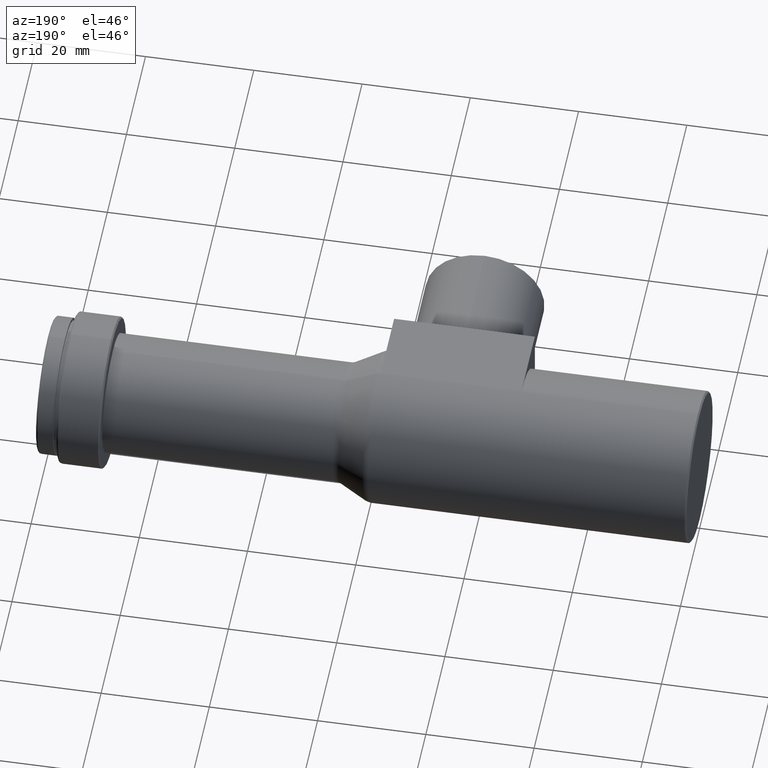
[diagram: clean part render]
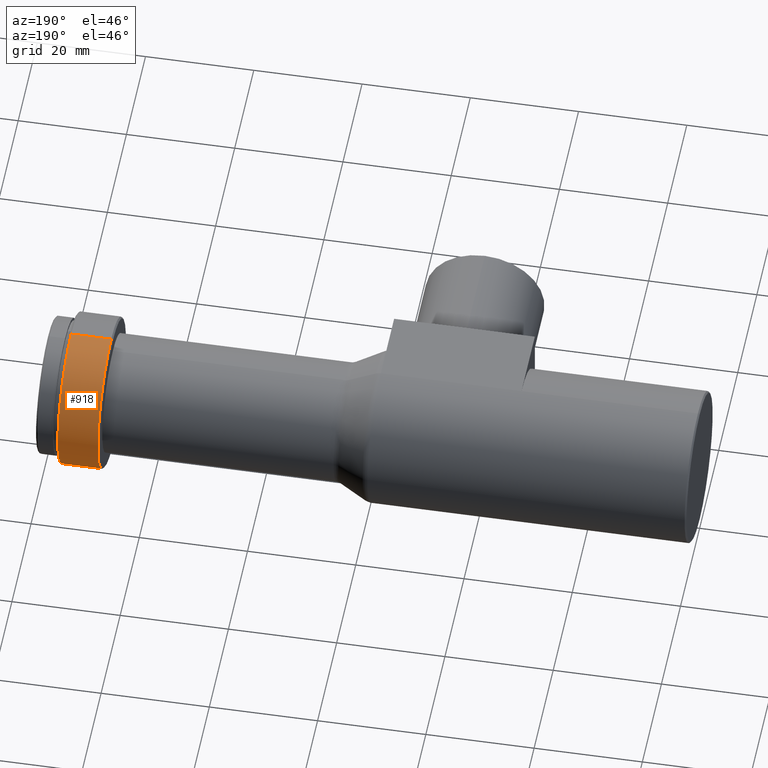
[diagram: same view with one face highlighted and labeled with its STEP entity id]
A machine part, auxiliary view. The second image highlights one B-rep face of the part: STEP entity #918.
In plain terms, the highlighted cylindrical surface (partial cylindrical patch) has radius 14 mm, axis along (-1, -0, -0).
Its self-contained STEP definition (entity closure, byte-faithful):
#14 = EDGE_CURVE ( 'NONE', #892, #454, #1109, .T. ) ;
#67 = VERTEX_POINT ( 'NONE', #72 ) ;
#72 = CARTESIAN_POINT ( 'NONE',  ( 108.6999999999999900, 1.714505518806294600E-015, 14.00000000000000000 ) ) ;
#97 = EDGE_CURVE ( 'NONE', #892, #67, #857, .T. ) ;
#99 = EDGE_CURVE ( 'NONE', #454, #541, #173, .T. ) ;
#110 = DIRECTION ( 'NONE',  ( 0.0000000000000000000, 0.0000000000000000000, 1.000000000000000000 ) ) ;
#170 = CYLINDRICAL_SURFACE ( 'NONE', #667, 14.00000000000000000 ) ;
#173 = LINE ( 'NONE', #1101, #602 ) ;
#219 = EDGE_CURVE ( 'NONE', #67, #541, #570, .T. ) ;
#337 = DIRECTION ( 'NONE',  ( 0.0000000000000000000, 0.0000000000000000000, 1.000000000000000000 ) ) ;
#345 = FACE_OUTER_BOUND ( 'NONE', #611, .T. ) ;
#382 = ORIENTED_EDGE ( 'NONE', *, *, #97, .F. ) ;
#409 = CARTESIAN_POINT ( 'NONE',  ( 108.6999999999999900, 0.0000000000000000000, -14.00000000000000000 ) ) ;
#454 = VERTEX_POINT ( 'NONE', #578 ) ;
#476 = ORIENTED_EDGE ( 'NONE', *, *, #219, .F. ) ;
#481 = CARTESIAN_POINT ( 'NONE',  ( 0.0000000000000000000, 0.0000000000000000000, 0.0000000000000000000 ) ) ;
#491 = ORIENTED_EDGE ( 'NONE', *, *, #14, .T. ) ;
#516 = CARTESIAN_POINT ( 'NONE',  ( 0.0000000000000000000, 0.0000000000000000000, 14.00000000000000000 ) ) ;
#541 = VERTEX_POINT ( 'NONE', #409 ) ;
#551 = CARTESIAN_POINT ( 'NONE',  ( 116.1000000000000100, 0.0000000000000000000, 14.00000000000000000 ) ) ;
#570 = CIRCLE ( 'NONE', #809, 14.00000000000000000 ) ;
#578 = CARTESIAN_POINT ( 'NONE',  ( 116.1000000000000100, 1.714505518806294600E-015, -14.00000000000000000 ) ) ;
#602 = VECTOR ( 'NONE', #1043, 1000.000000000000000 ) ;
#611 = EDGE_LOOP ( 'NONE', ( #491, #920, #476, #382 ) ) ;
#618 = AXIS2_PLACEMENT_3D ( 'NONE', #681, #1016, #337 ) ;
#663 = DIRECTION ( 'NONE',  ( -1.000000000000000000, -0.0000000000000000000, -0.0000000000000000000 ) ) ;
#667 = AXIS2_PLACEMENT_3D ( 'NONE', #481, #663, #745 ) ;
#668 = VECTOR ( 'NONE', #787, 1000.000000000000000 ) ;
#681 = CARTESIAN_POINT ( 'NONE',  ( 116.1000000000000100, 0.0000000000000000000, 0.0000000000000000000 ) ) ;
#714 = CARTESIAN_POINT ( 'NONE',  ( 108.6999999999999900, 0.0000000000000000000, 0.0000000000000000000 ) ) ;
#745 = DIRECTION ( 'NONE',  ( 0.0000000000000000000, 0.0000000000000000000, 1.000000000000000000 ) ) ;
#787 = DIRECTION ( 'NONE',  ( -1.000000000000000000, -0.0000000000000000000, -0.0000000000000000000 ) ) ;
#805 = DIRECTION ( 'NONE',  ( -1.000000000000000000, -0.0000000000000000000, -0.0000000000000000000 ) ) ;
#809 = AXIS2_PLACEMENT_3D ( 'NONE', #714, #805, #110 ) ;
#857 = LINE ( 'NONE', #516, #668 ) ;
#892 = VERTEX_POINT ( 'NONE', #551 ) ;
#918 = ADVANCED_FACE ( 'NONE', ( #345 ), #170, .T. ) ;
#920 = ORIENTED_EDGE ( 'NONE', *, *, #99, .T. ) ;
#1016 = DIRECTION ( 'NONE',  ( -1.000000000000000000, -0.0000000000000000000, -0.0000000000000000000 ) ) ;
#1043 = DIRECTION ( 'NONE',  ( -1.000000000000000000, -0.0000000000000000000, -0.0000000000000000000 ) ) ;
#1101 = CARTESIAN_POINT ( 'NONE',  ( 0.0000000000000000000, 1.714505518806294600E-015, -14.00000000000000000 ) ) ;
#1109 = CIRCLE ( 'NONE', #618, 14.00000000000000000 ) ;